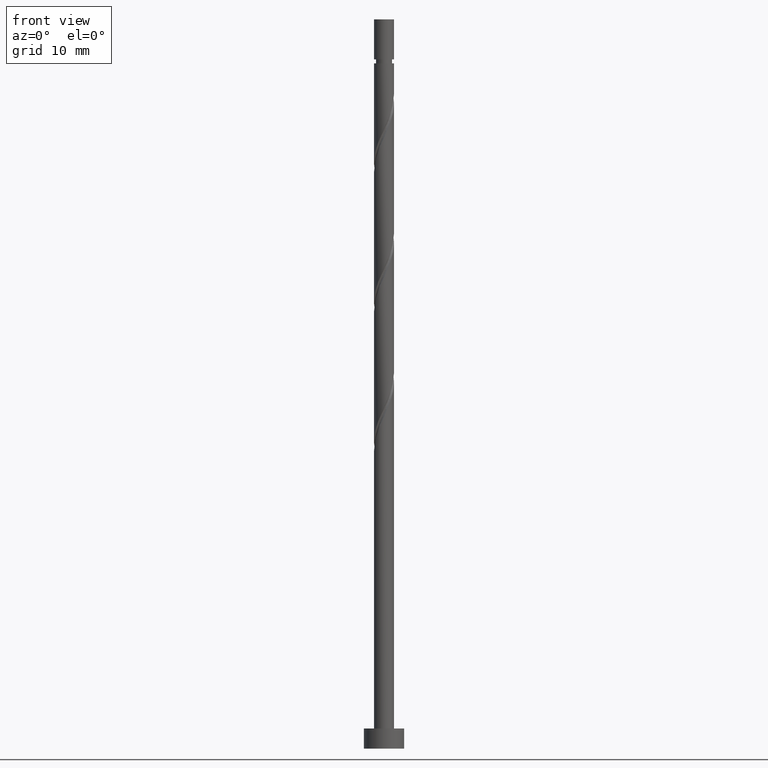
[diagram: clean part render]
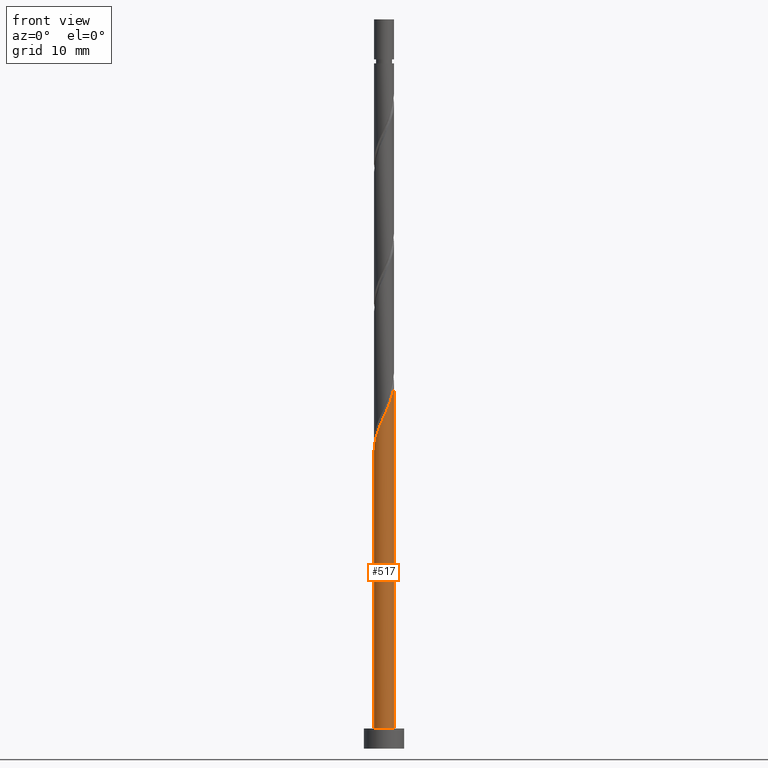
[diagram: same view with one face highlighted and labeled with its STEP entity id]
A machine part, front view. The second image highlights one B-rep face of the part: STEP entity #517.
In plain terms, the highlighted cylindrical surface (edge-blend (fillet) strip) has radius 1.5 mm, axis along (-0, -0, -1).
Its self-contained STEP definition (entity closure, byte-faithful):
#17 = CARTESIAN_POINT ( 'NONE',  ( 1.463309815754243015, -0.4064074959020250732, 53.96904235539331296 ) ) ;
#65 = LINE ( 'NONE', #557, #1000 ) ;
#112 = CIRCLE ( 'NONE', #831, 1.500000000000000222 ) ;
#128 = CARTESIAN_POINT ( 'NONE',  ( -1.500000000000000222, 0.000000000000000000, 3.000000000000000000 ) ) ;
#136 = CARTESIAN_POINT ( 'NONE',  ( 0.7381417674387931172, -1.305812670777222406, 51.36487568872665577 ) ) ;
#152 = CARTESIAN_POINT ( 'NONE',  ( 0.2984962311319860340, -1.470000000000002638, 50.32320902205996305 ) ) ;
#199 = CARTESIAN_POINT ( 'NONE',  ( -1.500000000000002442, -1.206944774048063375E-15, 44.45007324725638398 ) ) ;
#206 = ORIENTED_EDGE ( 'NONE', *, *, #487, .T. ) ;
#235 = CARTESIAN_POINT ( 'NONE',  ( -1.500000000000000222, 0.000000000000000000, 108.9800000000000040 ) ) ;
#264 = CARTESIAN_POINT ( 'NONE',  ( 1.105532844612585830, -1.013803299206907926, 52.40654235539332007 ) ) ;
#349 = DIRECTION ( 'NONE',  ( 1.000000000000000000, 0.000000000000000000, 0.000000000000000000 ) ) ;
#370 = CARTESIAN_POINT ( 'NONE',  ( 0.06567110385491718716, -1.517277158506825430, 49.80237568872664866 ) ) ;
#385 = CARTESIAN_POINT ( 'NONE',  ( 1.364706664255441293, -0.6225557971272882574, 53.44820902205998436 ) ) ;
#457 = EDGE_CURVE ( 'NONE', #778, #818, #112, .T. ) ;
#461 = CARTESIAN_POINT ( 'NONE',  ( 0.000000000000000000, 0.000000000000000000, 3.000000000000000000 ) ) ;
#484 = EDGE_CURVE ( 'NONE', #1333, #818, #65, .T. ) ;
#487 = EDGE_CURVE ( 'NONE', #837, #778, #1561, .T. ) ;
#491 = CARTESIAN_POINT ( 'NONE',  ( 1.500000000000000222, 1.836970198721030181E-16, 3.000000000000000000 ) ) ;
#517 = ADVANCED_FACE ( 'NONE', ( #730 ), #1088, .T. ) ;
#524 = AXIS2_PLACEMENT_3D ( 'NONE', #598, #966, #849 ) ;
#557 = CARTESIAN_POINT ( 'NONE',  ( 1.500000000000000222, 1.836970198721030181E-16, 108.9800000000000040 ) ) ;
#570 = ORIENTED_EDGE ( 'NONE', *, *, #484, .F. ) ;
#598 = CARTESIAN_POINT ( 'NONE',  ( 0.000000000000000000, 0.000000000000000000, 108.9800000000000040 ) ) ;
#618 = CARTESIAN_POINT ( 'NONE',  ( 0.5313213584090545893, -1.422722841493179402, 50.84404235539332007 ) ) ;
#689 = EDGE_LOOP ( 'NONE', ( #570, #1286, #206, #728 ) ) ;
#721 = CARTESIAN_POINT ( 'NONE',  ( -0.8387040983525509974, -1.266103512756640459, 47.71904235539332007 ) ) ;
#728 = ORIENTED_EDGE ( 'NONE', *, *, #457, .T. ) ;
#730 = FACE_OUTER_BOUND ( 'NONE', #689, .T. ) ;
#744 = EDGE_CURVE ( 'NONE', #837, #1333, #1371, .T. ) ;
#778 = VERTEX_POINT ( 'NONE', #128 ) ;
#818 = VERTEX_POINT ( 'NONE', #491 ) ;
#831 = AXIS2_PLACEMENT_3D ( 'NONE', #461, #1426, #349 ) ;
#837 = VERTEX_POINT ( 'NONE', #1240 ) ;
#849 = DIRECTION ( 'NONE',  ( -1.000000000000000000, 0.000000000000000000, 0.000000000000000000 ) ) ;
#904 = VECTOR ( 'NONE', #1314, 1000.000000000000000 ) ;
#966 = DIRECTION ( 'NONE',  ( -0.000000000000000000, -0.000000000000000000, -1.000000000000000000 ) ) ;
#982 = CARTESIAN_POINT ( 'NONE',  ( 1.490293487130534222, -0.1703681960235539916, 54.48987568872664866 ) ) ;
#1000 = VECTOR ( 'NONE', #1320, 1000.000000000000000 ) ;
#1002 = CARTESIAN_POINT ( 'NONE',  ( -0.6225557971272882574, -1.364706664255441293, 48.23987568872664866 ) ) ;
#1061 = CARTESIAN_POINT ( 'NONE',  ( -1.500000000000002442, -0.1507556722888825917, 44.78437782266421863 ) ) ;
#1088 = CYLINDRICAL_SURFACE ( 'NONE', #524, 1.500000000000000222 ) ;
#1101 = CARTESIAN_POINT ( 'NONE',  ( 1.500000000000002220, -0.08546060616965187040, 54.67722882471576185 ) ) ;
#1170 = CARTESIAN_POINT ( 'NONE',  ( -1.305812670777222406, -0.7381417674387932282, 46.15654235539332007 ) ) ;
#1240 = CARTESIAN_POINT ( 'NONE',  ( -1.500000000000002442, -1.206944774048063375E-15, 44.45007324725638398 ) ) ;
#1286 = ORIENTED_EDGE ( 'NONE', *, *, #744, .F. ) ;
#1300 = CARTESIAN_POINT ( 'NONE',  ( -1.188902500061264744, -0.9449621764685313119, 46.67737568872665577 ) ) ;
#1311 = CARTESIAN_POINT ( 'NONE',  ( -1.013803299206907926, -1.105532844612585830, 47.19820902205997726 ) ) ;
#1314 = DIRECTION ( 'NONE',  ( -0.000000000000000000, -0.000000000000000000, -1.000000000000000000 ) ) ;
#1320 = DIRECTION ( 'NONE',  ( -0.000000000000000000, -0.000000000000000000, -1.000000000000000000 ) ) ;
#1325 = CARTESIAN_POINT ( 'NONE',  ( 0.9449621764685313119, -1.188902500061264744, 51.88570902205998436 ) ) ;
#1333 = VERTEX_POINT ( 'NONE', #1394 ) ;
#1334 = CARTESIAN_POINT ( 'NONE',  ( 1.500000000000002442, 1.004537886474785654E-15, 54.86673991392304828 ) ) ;
#1342 = CARTESIAN_POINT ( 'NONE',  ( -0.1703681960235538806, -1.490293487130534222, 49.28154235539332717 ) ) ;
#1357 = CARTESIAN_POINT ( 'NONE',  ( 1.266103512756640459, -0.8387040983525509974, 52.92737568872665577 ) ) ;
#1371 =( BOUNDED_CURVE ( )  B_SPLINE_CURVE ( 2, ( #199, #1061, #1543, #1423, #1170, #1300, #1311, #721, #1002, #1574, #1342, #370, #152, #618, #136, #1325, #264, #1357, #385, #17, #982, #1101, #1334 ),
 .UNSPECIFIED., .F., .T. ) 
 B_SPLINE_CURVE_WITH_KNOTS ( ( 3, 2, 2, 2, 2, 2, 2, 2, 2, 2, 2, 3 ),
 ( 0.05453220231385525613, 0.06250000000000000000, 0.07499999999999995559, 0.08750000000000002220, 0.09999999999999997780, 0.1125000000000000444, 0.1250000000000000000, 0.1374999999999999556, 0.1500000000000000222, 0.1624999999999999778, 0.1750000000000000444, 0.1795322023138551104 ),
 .UNSPECIFIED. ) 
 CURVE ( )  GEOMETRIC_REPRESENTATION_ITEM ( )  RATIONAL_B_SPLINE_CURVE ( ( 0.9039174447099380671, 0.9019565955404673652, 0.9090909090909156109, 0.8978984914501316750, 0.9090909090909156109, 0.8978984914501316750, 0.9090909090909156109, 0.8978984914501316750, 0.9090909090909156109, 0.8978984914501316750, 0.9090909090909156109, 0.8978984914501316750, 0.9090909090909156109, 0.8978984914501316750, 0.9090909090909156109, 0.8978984914501316750, 0.9090909090909156109, 0.8978984914501316750, 0.9090909090909156109, 0.8978984914501316750, 0.9090909090909156109, 0.9050328050005800318, 0.9039174447099378451 ) ) 
 REPRESENTATION_ITEM ( '' )  );
#1394 = CARTESIAN_POINT ( 'NONE',  ( 1.500000000000002442, 1.004537886474785654E-15, 54.86673991392304828 ) ) ;
#1423 = CARTESIAN_POINT ( 'NONE',  ( -1.422722841493179402, -0.5313213584090547004, 45.63570902205998436 ) ) ;
#1426 = DIRECTION ( 'NONE',  ( 0.000000000000000000, 0.000000000000000000, 1.000000000000000000 ) ) ;
#1543 = CARTESIAN_POINT ( 'NONE',  ( -1.470000000000002638, -0.2984962311319860895, 45.11487568872664156 ) ) ;
#1561 = LINE ( 'NONE', #235, #904 ) ;
#1574 = CARTESIAN_POINT ( 'NONE',  ( -0.4064074959020250732, -1.463309815754243015, 48.76070902205997015 ) ) ;